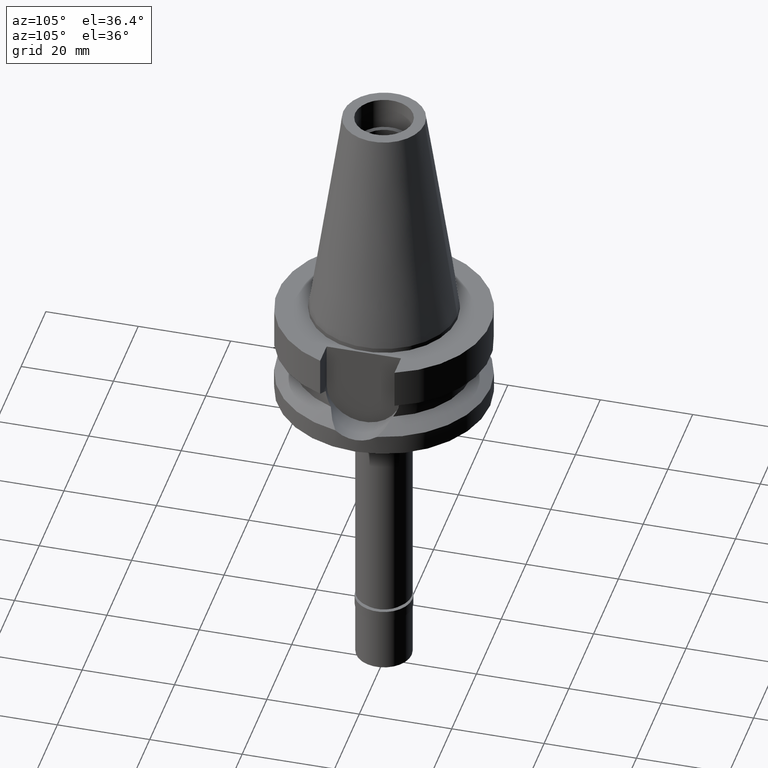
[diagram: clean part render]
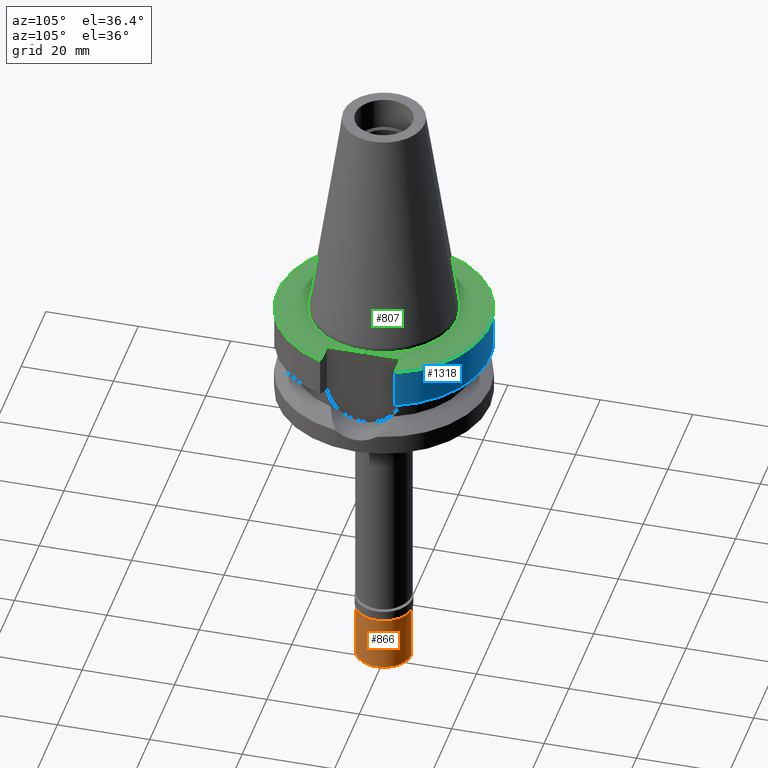
[diagram: same view with three faces highlighted in distinct colors, each labeled with its STEP entity id]
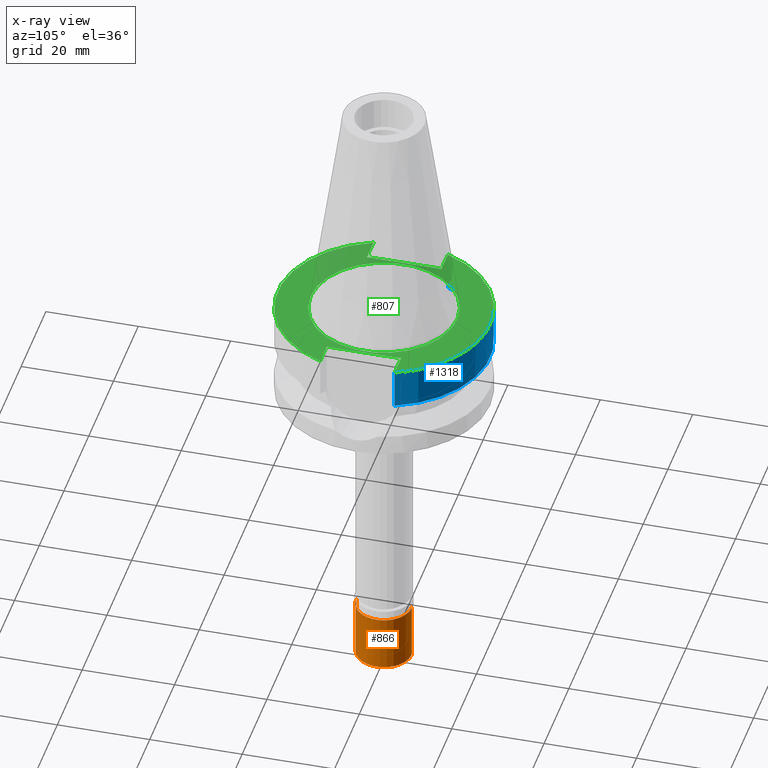
[diagram: x-ray of the same camera — body ghosted, the three highlighted faces saturated]
A machine part, auxiliary view with three faces highlighted in distinct colors.
The next image is the same camera in x-ray (body ghosted, the three faces saturated) — at least one of them is partly hidden behind the body in this view.
Their STEP definitions:

[orange] entity #866 — the highlighted cylindrical surface (edge-blend (fillet) strip) has radius 6 mm, axis along (0, 0, 1).
#116 = CARTESIAN_POINT ( 'NONE',  ( 0.0000000000000000000, 0.0000000000000000000, -15.22500000000000142 ) ) ;
#135 = EDGE_CURVE ( 'NONE', #2564, #347, #905, .T. ) ;
#171 = DIRECTION ( 'NONE',  ( 0.0000000000000000000, 0.0000000000000000000, 1.000000000000000000 ) ) ;
#189 = CARTESIAN_POINT ( 'NONE',  ( 0.0000000000000000000, -6.000000000000000000, -2.299999999999999822 ) ) ;
#235 = DIRECTION ( 'NONE',  ( 0.0000000000000000000, 0.0000000000000000000, 1.000000000000000000 ) ) ;
#260 = CARTESIAN_POINT ( 'NONE',  ( 0.0000000000000000000, 6.000000000000000000, -2.299999999999999822 ) ) ;
#347 = VERTEX_POINT ( 'NONE', #2306 ) ;
#424 = VERTEX_POINT ( 'NONE', #260 ) ;
#440 = DIRECTION ( 'NONE',  ( 0.0000000000000000000, 0.0000000000000000000, -1.000000000000000000 ) ) ;
#451 = DIRECTION ( 'NONE',  ( 0.0000000000000000000, -1.000000000000000000, 0.0000000000000000000 ) ) ;
#488 = VECTOR ( 'NONE', #2682, 1000.000000000000000 ) ;
#496 = CIRCLE ( 'NONE', #541, 6.000000000000000000 ) ;
#497 = AXIS2_PLACEMENT_3D ( 'NONE', #116, #235, #637 ) ;
#526 = EDGE_LOOP ( 'NONE', ( #2294, #2419, #692, #1823 ) ) ;
#541 = AXIS2_PLACEMENT_3D ( 'NONE', #2604, #1504, #1067 ) ;
#630 = LINE ( 'NONE', #2645, #675 ) ;
#637 = DIRECTION ( 'NONE',  ( 0.0000000000000000000, 1.000000000000000000, 0.0000000000000000000 ) ) ;
#675 = VECTOR ( 'NONE', #440, 1000.000000000000000 ) ;
#692 = ORIENTED_EDGE ( 'NONE', *, *, #2315, .T. ) ;
#715 = EDGE_CURVE ( 'NONE', #424, #1140, #630, .T. ) ;
#866 = ADVANCED_FACE ( 'NONE', ( #1241 ), #2734, .T. ) ;
#905 = LINE ( 'NONE', #1367, #488 ) ;
#1067 = DIRECTION ( 'NONE',  ( 0.0000000000000000000, 1.000000000000000000, 0.0000000000000000000 ) ) ;
#1072 = CARTESIAN_POINT ( 'NONE',  ( 0.0000000000000000000, 6.000000000000000000, -14.50000000000000000 ) ) ;
#1140 = VERTEX_POINT ( 'NONE', #1072 ) ;
#1236 = CIRCLE ( 'NONE', #2710, 6.000000000000000000 ) ;
#1241 = FACE_OUTER_BOUND ( 'NONE', #526, .T. ) ;
#1367 = CARTESIAN_POINT ( 'NONE',  ( 0.0000000000000000000, -6.000000000000000000, -2.299999999999999822 ) ) ;
#1504 = DIRECTION ( 'NONE',  ( 0.0000000000000000000, 0.0000000000000000000, -1.000000000000000000 ) ) ;
#1586 = EDGE_CURVE ( 'NONE', #424, #2564, #496, .T. ) ;
#1823 = ORIENTED_EDGE ( 'NONE', *, *, #715, .F. ) ;
#2207 = CARTESIAN_POINT ( 'NONE',  ( 0.0000000000000000000, 0.0000000000000000000, -14.50000000000000000 ) ) ;
#2294 = ORIENTED_EDGE ( 'NONE', *, *, #1586, .T. ) ;
#2306 = CARTESIAN_POINT ( 'NONE',  ( 0.0000000000000000000, -6.000000000000000000, -14.50000000000000000 ) ) ;
#2315 = EDGE_CURVE ( 'NONE', #347, #1140, #1236, .T. ) ;
#2419 = ORIENTED_EDGE ( 'NONE', *, *, #135, .T. ) ;
#2564 = VERTEX_POINT ( 'NONE', #189 ) ;
#2604 = CARTESIAN_POINT ( 'NONE',  ( 0.0000000000000000000, 0.0000000000000000000, -2.299999999999999822 ) ) ;
#2645 = CARTESIAN_POINT ( 'NONE',  ( 0.0000000000000000000, 6.000000000000000000, -2.299999999999999822 ) ) ;
#2682 = DIRECTION ( 'NONE',  ( 0.0000000000000000000, 0.0000000000000000000, -1.000000000000000000 ) ) ;
#2710 = AXIS2_PLACEMENT_3D ( 'NONE', #2207, #171, #451 ) ;
#2734 = CYLINDRICAL_SURFACE ( 'NONE', #497, 6.000000000000000000 ) ;

[blue] entity #1318 — the highlighted cylindrical surface (partial cylindrical patch) has radius 23.0018 mm, axis along (0, 0, -1).
#16 = DIRECTION ( 'NONE',  ( 0.0000000000000000000, 0.0000000000000000000, -1.000000000000000000 ) ) ;
#324 = EDGE_CURVE ( 'NONE', #1127, #1515, #646, .T. ) ;
#365 = DIRECTION ( 'NONE',  ( 0.0000000000000000000, 1.000000000000000000, 0.0000000000000000000 ) ) ;
#379 = CARTESIAN_POINT ( 'NONE',  ( -21.54715501431999769, 8.050002093644000212, -9.567194611493999190 ) ) ;
#406 = VERTEX_POINT ( 'NONE', #1632 ) ;
#443 = DIRECTION ( 'NONE',  ( 0.0000000000000000000, -1.000000000000000000, 0.0000000000000000000 ) ) ;
#565 = CARTESIAN_POINT ( 'NONE',  ( 0.0000000000000000000, 1.899672114836999856E-14, -0.9999999999999000799 ) ) ;
#646 = LINE ( 'NONE', #2199, #2035 ) ;
#665 = CYLINDRICAL_SURFACE ( 'NONE', #1859, 23.00179173279000011 ) ;
#1127 = VERTEX_POINT ( 'NONE', #2571 ) ;
#1131 = ORIENTED_EDGE ( 'NONE', *, *, #2474, .T. ) ;
#1185 = DIRECTION ( 'NONE',  ( 0.0000000000000000000, 0.0000000000000000000, 1.000000000000000000 ) ) ;
#1318 = ADVANCED_FACE ( 'NONE', ( #1770 ), #665, .T. ) ;
#1321 = CARTESIAN_POINT ( 'NONE',  ( 0.0000000000000000000, 1.899672114836999856E-14, 55.12000000000000455 ) ) ;
#1515 = VERTEX_POINT ( 'NONE', #379 ) ;
#1545 = DIRECTION ( 'NONE',  ( 9.129988865125689303E-08, 2.443791702681914119E-07, -0.9999999999999659162 ) ) ;
#1554 = AXIS2_PLACEMENT_3D ( 'NONE', #1618, #1185, #2747 ) ;
#1618 = CARTESIAN_POINT ( 'NONE',  ( 0.0000000000000000000, 1.093341284896999988E-14, -9.567208369710998639 ) ) ;
#1632 = CARTESIAN_POINT ( 'NONE',  ( 21.54715579650000024, 8.050000000000000711, -0.9999999999999000799 ) ) ;
#1712 = ORIENTED_EDGE ( 'NONE', *, *, #324, .F. ) ;
#1770 = FACE_OUTER_BOUND ( 'NONE', #1975, .T. ) ;
#1859 = AXIS2_PLACEMENT_3D ( 'NONE', #1321, #16, #443 ) ;
#1875 = ORIENTED_EDGE ( 'NONE', *, *, #2087, .F. ) ;
#1902 = DIRECTION ( 'NONE',  ( 0.0000000000000000000, 0.0000000000000000000, -1.000000000000000000 ) ) ;
#1922 = DIRECTION ( 'NONE',  ( -1.842092998948992668E-08, 4.930663728112983103E-08, 0.9999999999999985567 ) ) ;
#1975 = EDGE_LOOP ( 'NONE', ( #1712, #2605, #1875, #1131 ) ) ;
#2025 = VERTEX_POINT ( 'NONE', #2699 ) ;
#2035 = VECTOR ( 'NONE', #1545, 1000.000000000000114 ) ;
#2087 = EDGE_CURVE ( 'NONE', #2025, #406, #2786, .T. ) ;
#2148 = EDGE_CURVE ( 'NONE', #1127, #406, #2573, .T. ) ;
#2199 = CARTESIAN_POINT ( 'NONE',  ( -21.54715579650000024, 8.050000000000000711, -1.000000000000000000 ) ) ;
#2431 = AXIS2_PLACEMENT_3D ( 'NONE', #565, #1902, #365 ) ;
#2474 = EDGE_CURVE ( 'NONE', #2025, #1515, #2577, .T. ) ;
#2532 = VECTOR ( 'NONE', #1922, 1000.000000000000114 ) ;
#2571 = CARTESIAN_POINT ( 'NONE',  ( -21.54715579650000024, 8.050000000000000711, -1.000000000000000000 ) ) ;
#2573 = CIRCLE ( 'NONE', #2431, 23.00179173279000011 ) ;
#2577 = CIRCLE ( 'NONE', #1554, 23.00179173279000011 ) ;
#2601 = CARTESIAN_POINT ( 'NONE',  ( 21.54715595432000086, 8.049999577580001286, -9.567211145438999864 ) ) ;
#2605 = ORIENTED_EDGE ( 'NONE', *, *, #2148, .T. ) ;
#2699 = CARTESIAN_POINT ( 'NONE',  ( 21.54715595432000086, 8.049999577580001286, -9.567211145438999864 ) ) ;
#2747 = DIRECTION ( 'NONE',  ( 0.0000000000000000000, 1.000000000000000000, 0.0000000000000000000 ) ) ;
#2786 = LINE ( 'NONE', #2601, #2532 ) ;

[green] entity #807 — the highlighted planar face has unit normal (0, 0, -1).
#24 = CIRCLE ( 'NONE', #1983, 15.87500000000000000 ) ;
#67 = EDGE_CURVE ( 'NONE', #2154, #2095, #2520, .T. ) ;
#97 = ORIENTED_EDGE ( 'NONE', *, *, #67, .F. ) ;
#125 = DIRECTION ( 'NONE',  ( 0.0000000000000000000, 0.0000000000000000000, 1.000000000000000000 ) ) ;
#133 = ORIENTED_EDGE ( 'NONE', *, *, #2832, .T. ) ;
#138 = CARTESIAN_POINT ( 'NONE',  ( 0.0000000000000000000, 1.899672114836999856E-14, -0.9999999999999000799 ) ) ;
#199 = LINE ( 'NONE', #1094, #2590 ) ;
#258 = DIRECTION ( 'NONE',  ( 0.0000000000000000000, -1.000000000000000000, 0.0000000000000000000 ) ) ;
#284 = EDGE_CURVE ( 'NONE', #1536, #1127, #1044, .T. ) ;
#302 = EDGE_CURVE ( 'NONE', #2154, #406, #2473, .T. ) ;
#365 = DIRECTION ( 'NONE',  ( 0.0000000000000000000, 1.000000000000000000, 0.0000000000000000000 ) ) ;
#406 = VERTEX_POINT ( 'NONE', #1632 ) ;
#534 = EDGE_CURVE ( 'NONE', #2095, #2376, #818, .T. ) ;
#537 = CARTESIAN_POINT ( 'NONE',  ( -21.54715579650000024, -8.050000000000000711, -1.000000000000000000 ) ) ;
#565 = CARTESIAN_POINT ( 'NONE',  ( 0.0000000000000000000, 1.899672114836999856E-14, -0.9999999999999000799 ) ) ;
#666 = LINE ( 'NONE', #1583, #2180 ) ;
#672 = PLANE ( 'NONE',  #2084 ) ;
#695 = EDGE_LOOP ( 'NONE', ( #855, #1237 ) ) ;
#718 = VECTOR ( 'NONE', #1350, 1000.000000000000000 ) ;
#767 = VECTOR ( 'NONE', #2408, 1000.000000000000000 ) ;
#800 = CARTESIAN_POINT ( 'NONE',  ( -16.29999999999999716, 8.050000000000000711, -1.000000000000000000 ) ) ;
#807 = ADVANCED_FACE ( 'NONE', ( #1774, #2250 ), #672, .F. ) ;
#811 = ORIENTED_EDGE ( 'NONE', *, *, #2653, .F. ) ;
#818 = LINE ( 'NONE', #1713, #767 ) ;
#852 = CARTESIAN_POINT ( 'NONE',  ( 0.0000000000000000000, 1.212400331155999925E-14, -1.000000000000000000 ) ) ;
#855 = ORIENTED_EDGE ( 'NONE', *, *, #1977, .F. ) ;
#858 = CARTESIAN_POINT ( 'NONE',  ( 16.29999999999999716, 8.050000000000000711, -1.000000000000000000 ) ) ;
#923 = VERTEX_POINT ( 'NONE', #1225 ) ;
#975 = ORIENTED_EDGE ( 'NONE', *, *, #2148, .F. ) ;
#987 = ORIENTED_EDGE ( 'NONE', *, *, #284, .F. ) ;
#1016 = DIRECTION ( 'NONE',  ( 0.0000000000000000000, -1.000000000000000000, 0.0000000000000000000 ) ) ;
#1044 = LINE ( 'NONE', #1310, #1199 ) ;
#1094 = CARTESIAN_POINT ( 'NONE',  ( -16.29999999999999716, -8.050000000000000711, -1.000000000000000000 ) ) ;
#1127 = VERTEX_POINT ( 'NONE', #2571 ) ;
#1199 = VECTOR ( 'NONE', #2248, 1000.000000000000000 ) ;
#1225 = CARTESIAN_POINT ( 'NONE',  ( -16.29999999999999716, -8.050000000000000711, -1.000000000000000000 ) ) ;
#1230 = CARTESIAN_POINT ( 'NONE',  ( 0.0000000000000000000, -15.87500000000000000, -0.9999999999999000799 ) ) ;
#1237 = ORIENTED_EDGE ( 'NONE', *, *, #2686, .F. ) ;
#1246 = CARTESIAN_POINT ( 'NONE',  ( 16.29999999999999716, -8.050000000000000711, -1.000000000000000000 ) ) ;
#1310 = CARTESIAN_POINT ( 'NONE',  ( -16.29999999999999716, 8.050000000000000711, -1.000000000000000000 ) ) ;
#1350 = DIRECTION ( 'NONE',  ( 1.000000000000000000, 0.0000000000000000000, 0.0000000000000000000 ) ) ;
#1373 = VERTEX_POINT ( 'NONE', #1866 ) ;
#1422 = CARTESIAN_POINT ( 'NONE',  ( 16.29999999999999716, 8.050000000000000711, -1.000000000000000000 ) ) ;
#1430 = VECTOR ( 'NONE', #258, 1000.000000000000000 ) ;
#1479 = CIRCLE ( 'NONE', #1610, 23.00179173279000011 ) ;
#1526 = DIRECTION ( 'NONE',  ( 0.0000000000000000000, -1.000000000000000000, 0.0000000000000000000 ) ) ;
#1536 = VERTEX_POINT ( 'NONE', #800 ) ;
#1565 = DIRECTION ( 'NONE',  ( -1.000000000000000000, 0.0000000000000000000, 0.0000000000000000000 ) ) ;
#1583 = CARTESIAN_POINT ( 'NONE',  ( -16.29999999999999716, -8.050000000000000711, -1.000000000000000000 ) ) ;
#1610 = AXIS2_PLACEMENT_3D ( 'NONE', #1656, #2335, #1526 ) ;
#1631 = CARTESIAN_POINT ( 'NONE',  ( 0.0000000000000000000, 1.899672114836999856E-14, -0.9999999999999000799 ) ) ;
#1632 = CARTESIAN_POINT ( 'NONE',  ( 21.54715579650000024, 8.050000000000000711, -0.9999999999999000799 ) ) ;
#1656 = CARTESIAN_POINT ( 'NONE',  ( 0.0000000000000000000, 1.899672114836999856E-14, -0.9999999999999000799 ) ) ;
#1660 = CARTESIAN_POINT ( 'NONE',  ( 16.29999999999999716, 8.050000000000000711, -1.000000000000000000 ) ) ;
#1673 = EDGE_CURVE ( 'NONE', #923, #1536, #199, .T. ) ;
#1713 = CARTESIAN_POINT ( 'NONE',  ( 16.29999999999999716, -8.050000000000000711, -1.000000000000000000 ) ) ;
#1749 = DIRECTION ( 'NONE',  ( 0.0000000000000000000, 1.000000000000000000, 0.0000000000000000000 ) ) ;
#1765 = EDGE_LOOP ( 'NONE', ( #133, #811, #2487, #97, #2327, #975, #987, #1933 ) ) ;
#1774 = FACE_OUTER_BOUND ( 'NONE', #1765, .T. ) ;
#1866 = CARTESIAN_POINT ( 'NONE',  ( 0.0000000000000000000, 15.87500000000000000, -0.9999999999999000799 ) ) ;
#1874 = DIRECTION ( 'NONE',  ( 0.0000000000000000000, 1.000000000000000000, 0.0000000000000000000 ) ) ;
#1902 = DIRECTION ( 'NONE',  ( 0.0000000000000000000, 0.0000000000000000000, -1.000000000000000000 ) ) ;
#1933 = ORIENTED_EDGE ( 'NONE', *, *, #1673, .F. ) ;
#1977 = EDGE_CURVE ( 'NONE', #1373, #2184, #2458, .T. ) ;
#1978 = DIRECTION ( 'NONE',  ( 0.0000000000000000000, 0.0000000000000000000, -1.000000000000000000 ) ) ;
#1983 = AXIS2_PLACEMENT_3D ( 'NONE', #138, #125, #1016 ) ;
#2020 = CARTESIAN_POINT ( 'NONE',  ( 21.54715579650000024, -8.050000000000000711, -1.000000000000000000 ) ) ;
#2021 = VERTEX_POINT ( 'NONE', #537 ) ;
#2084 = AXIS2_PLACEMENT_3D ( 'NONE', #852, #1978, #2464 ) ;
#2095 = VERTEX_POINT ( 'NONE', #1246 ) ;
#2148 = EDGE_CURVE ( 'NONE', #1127, #406, #2573, .T. ) ;
#2154 = VERTEX_POINT ( 'NONE', #1660 ) ;
#2180 = VECTOR ( 'NONE', #1565, 1000.000000000000000 ) ;
#2184 = VERTEX_POINT ( 'NONE', #1230 ) ;
#2248 = DIRECTION ( 'NONE',  ( -1.000000000000000000, 0.0000000000000000000, 0.0000000000000000000 ) ) ;
#2250 = FACE_BOUND ( 'NONE', #695, .T. ) ;
#2280 = AXIS2_PLACEMENT_3D ( 'NONE', #1631, #2521, #1874 ) ;
#2327 = ORIENTED_EDGE ( 'NONE', *, *, #302, .T. ) ;
#2335 = DIRECTION ( 'NONE',  ( 0.0000000000000000000, 0.0000000000000000000, -1.000000000000000000 ) ) ;
#2376 = VERTEX_POINT ( 'NONE', #2020 ) ;
#2408 = DIRECTION ( 'NONE',  ( 1.000000000000000000, 0.0000000000000000000, 0.0000000000000000000 ) ) ;
#2431 = AXIS2_PLACEMENT_3D ( 'NONE', #565, #1902, #365 ) ;
#2458 = CIRCLE ( 'NONE', #2280, 15.87500000000000000 ) ;
#2464 = DIRECTION ( 'NONE',  ( 0.0000000000000000000, -1.000000000000000000, 0.0000000000000000000 ) ) ;
#2473 = LINE ( 'NONE', #858, #718 ) ;
#2487 = ORIENTED_EDGE ( 'NONE', *, *, #534, .F. ) ;
#2520 = LINE ( 'NONE', #1422, #1430 ) ;
#2521 = DIRECTION ( 'NONE',  ( 0.0000000000000000000, 0.0000000000000000000, 1.000000000000000000 ) ) ;
#2571 = CARTESIAN_POINT ( 'NONE',  ( -21.54715579650000024, 8.050000000000000711, -1.000000000000000000 ) ) ;
#2573 = CIRCLE ( 'NONE', #2431, 23.00179173279000011 ) ;
#2590 = VECTOR ( 'NONE', #1749, 1000.000000000000000 ) ;
#2653 = EDGE_CURVE ( 'NONE', #2376, #2021, #1479, .T. ) ;
#2686 = EDGE_CURVE ( 'NONE', #2184, #1373, #24, .T. ) ;
#2832 = EDGE_CURVE ( 'NONE', #923, #2021, #666, .T. ) ;